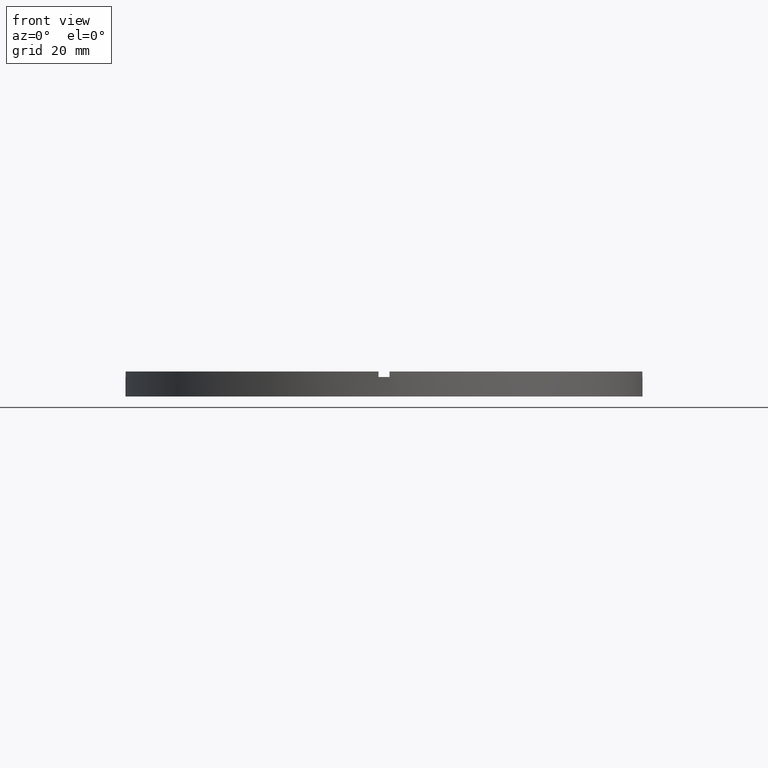
[diagram: clean part render]
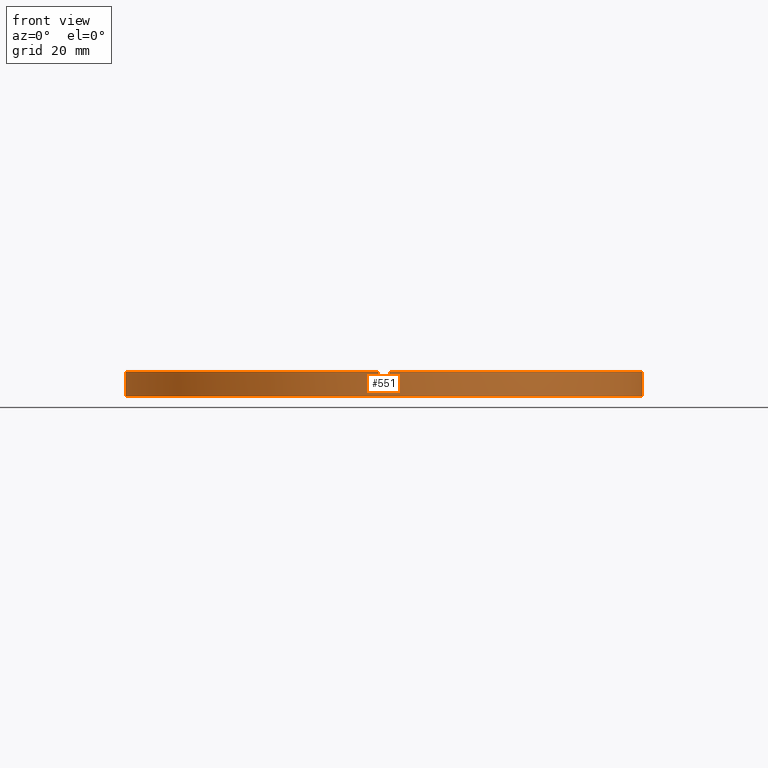
[diagram: same view with one face highlighted and labeled with its STEP entity id]
A machine part, front view. The second image highlights one B-rep face of the part: STEP entity #551.
In plain terms, the highlighted cylindrical surface (partial cylindrical patch) has radius 46.5 mm, axis along (-0, -0, -1).
Its self-contained STEP definition (entity closure, byte-faithful):
#26 = CARTESIAN_POINT ( 'NONE',  ( -46.50000000000000000, 0.000000000000000000, 0.000000000000000000 ) ) ;
#36 = DIRECTION ( 'NONE',  ( -0.000000000000000000, -0.000000000000000000, -1.000000000000000000 ) ) ;
#40 = CARTESIAN_POINT ( 'NONE',  ( 46.48924606831132422, -1.000000000000155875, 3.499999999999999556 ) ) ;
#42 = CARTESIAN_POINT ( 'NONE',  ( -46.48924606831132422, -1.000000000000030420, 4.500000000000000000 ) ) ;
#44 = CARTESIAN_POINT ( 'NONE',  ( -46.48924606831132422, -1.000000000000030420, 3.499999999999999556 ) ) ;
#64 = CARTESIAN_POINT ( 'NONE',  ( 0.000000000000000000, 0.000000000000000000, 3.499999999999999556 ) ) ;
#65 = CIRCLE ( 'NONE', #597, 46.50000000000000000 ) ;
#69 = CIRCLE ( 'NONE', #83, 46.50000000000000000 ) ;
#72 = CIRCLE ( 'NONE', #772, 46.50000000000000000 ) ;
#77 = CARTESIAN_POINT ( 'NONE',  ( 0.000000000000000000, 0.000000000000000000, 0.000000000000000000 ) ) ;
#83 = AXIS2_PLACEMENT_3D ( 'NONE', #77, #144, #225 ) ;
#89 = CARTESIAN_POINT ( 'NONE',  ( -1.000000000000157652, -46.48924606831132422, 4.500000000000000000 ) ) ;
#94 = VECTOR ( 'NONE', #530, 1000.000000000000000 ) ;
#96 = VERTEX_POINT ( 'NONE', #40 ) ;
#101 = ORIENTED_EDGE ( 'NONE', *, *, #562, .T. ) ;
#111 = ORIENTED_EDGE ( 'NONE', *, *, #407, .F. ) ;
#112 = EDGE_CURVE ( 'NONE', #96, #644, #249, .T. ) ;
#113 = LINE ( 'NONE', #155, #213 ) ;
#118 = FACE_OUTER_BOUND ( 'NONE', #370, .T. ) ;
#132 = VERTEX_POINT ( 'NONE', #44 ) ;
#133 = DIRECTION ( 'NONE',  ( -0.000000000000000000, -0.000000000000000000, -1.000000000000000000 ) ) ;
#136 = ORIENTED_EDGE ( 'NONE', *, *, #660, .T. ) ;
#144 = DIRECTION ( 'NONE',  ( 0.000000000000000000, 0.000000000000000000, 1.000000000000000000 ) ) ;
#147 = AXIS2_PLACEMENT_3D ( 'NONE', #575, #775, #232 ) ;
#154 = DIRECTION ( 'NONE',  ( 0.000000000000000000, 0.000000000000000000, 1.000000000000000000 ) ) ;
#155 = CARTESIAN_POINT ( 'NONE',  ( 0.9999999999998423483, -46.48924606831132422, 4.500000000000000000 ) ) ;
#170 = VECTOR ( 'NONE', #36, 1000.000000000000000 ) ;
#174 = AXIS2_PLACEMENT_3D ( 'NONE', #451, #289, #469 ) ;
#179 = LINE ( 'NONE', #275, #170 ) ;
#185 = VECTOR ( 'NONE', #678, 1000.000000000000000 ) ;
#189 = ORIENTED_EDGE ( 'NONE', *, *, #112, .F. ) ;
#194 = CIRCLE ( 'NONE', #174, 46.50000000000000000 ) ;
#202 = LINE ( 'NONE', #204, #185 ) ;
#204 = CARTESIAN_POINT ( 'NONE',  ( 46.48924606831132422, -1.000000000000155875, 4.500000000000000000 ) ) ;
#207 = CARTESIAN_POINT ( 'NONE',  ( 46.50000000000000000, 5.694607616035192278E-15, 4.500000000000000000 ) ) ;
#213 = VECTOR ( 'NONE', #133, 1000.000000000000000 ) ;
#219 = ORIENTED_EDGE ( 'NONE', *, *, #283, .F. ) ;
#225 = DIRECTION ( 'NONE',  ( 1.000000000000000000, 0.000000000000000000, 0.000000000000000000 ) ) ;
#232 = DIRECTION ( 'NONE',  ( -1.000000000000000000, 0.000000000000000000, 0.000000000000000000 ) ) ;
#249 = CIRCLE ( 'NONE', #637, 46.50000000000000000 ) ;
#256 = LINE ( 'NONE', #702, #520 ) ;
#258 = EDGE_CURVE ( 'NONE', #727, #132, #256, .T. ) ;
#260 = VECTOR ( 'NONE', #154, 1000.000000000000000 ) ;
#271 = EDGE_CURVE ( 'NONE', #390, #627, #783, .T. ) ;
#275 = CARTESIAN_POINT ( 'NONE',  ( -46.50000000000000000, 0.000000000000000000, 4.500000000000000000 ) ) ;
#279 = CARTESIAN_POINT ( 'NONE',  ( 0.9999999999998423483, -46.48924606831132422, 4.500000000000000000 ) ) ;
#283 = EDGE_CURVE ( 'NONE', #390, #483, #587, .T. ) ;
#284 = CARTESIAN_POINT ( 'NONE',  ( 46.50000000000000000, 5.694607616035192278E-15, 0.000000000000000000 ) ) ;
#289 = DIRECTION ( 'NONE',  ( 0.000000000000000000, 0.000000000000000000, 1.000000000000000000 ) ) ;
#299 = DIRECTION ( 'NONE',  ( -0.000000000000000000, 0.000000000000000000, 1.000000000000000000 ) ) ;
#350 = CARTESIAN_POINT ( 'NONE',  ( -1.000000000000157652, -46.48924606831132422, 3.499999999999999556 ) ) ;
#357 = LINE ( 'NONE', #207, #94 ) ;
#361 = DIRECTION ( 'NONE',  ( 1.000000000000000000, 0.000000000000000000, 0.000000000000000000 ) ) ;
#366 = ORIENTED_EDGE ( 'NONE', *, *, #258, .T. ) ;
#369 = DIRECTION ( 'NONE',  ( 1.000000000000000000, 0.000000000000000000, 0.000000000000000000 ) ) ;
#370 = EDGE_LOOP ( 'NONE', ( #698, #189, #136, #445, #101, #219, #485, #397, #366, #111, #447, #730 ) ) ;
#386 = CARTESIAN_POINT ( 'NONE',  ( 0.9999999999998423483, -46.48924606831132422, 3.499999999999999556 ) ) ;
#390 = VERTEX_POINT ( 'NONE', #350 ) ;
#397 = ORIENTED_EDGE ( 'NONE', *, *, #731, .F. ) ;
#399 = EDGE_CURVE ( 'NONE', #715, #411, #72, .T. ) ;
#407 = EDGE_CURVE ( 'NONE', #719, #132, #65, .T. ) ;
#411 = VERTEX_POINT ( 'NONE', #535 ) ;
#444 = AXIS2_PLACEMENT_3D ( 'NONE', #64, #299, #361 ) ;
#445 = ORIENTED_EDGE ( 'NONE', *, *, #399, .F. ) ;
#447 = ORIENTED_EDGE ( 'NONE', *, *, #647, .T. ) ;
#451 = CARTESIAN_POINT ( 'NONE',  ( 0.000000000000000000, 0.000000000000000000, 4.500000000000000000 ) ) ;
#454 = CARTESIAN_POINT ( 'NONE',  ( 0.000000000000000000, 0.000000000000000000, 3.499999999999999556 ) ) ;
#455 = EDGE_CURVE ( 'NONE', #490, #465, #69, .T. ) ;
#465 = VERTEX_POINT ( 'NONE', #284 ) ;
#469 = DIRECTION ( 'NONE',  ( 1.000000000000000000, 0.000000000000000000, 0.000000000000000000 ) ) ;
#483 = VERTEX_POINT ( 'NONE', #386 ) ;
#485 = ORIENTED_EDGE ( 'NONE', *, *, #271, .T. ) ;
#490 = VERTEX_POINT ( 'NONE', #26 ) ;
#494 = EDGE_CURVE ( 'NONE', #644, #465, #357, .T. ) ;
#520 = VECTOR ( 'NONE', #779, 1000.000000000000000 ) ;
#530 = DIRECTION ( 'NONE',  ( -0.000000000000000000, -0.000000000000000000, -1.000000000000000000 ) ) ;
#535 = CARTESIAN_POINT ( 'NONE',  ( 46.48924606831132422, -1.000000000000155875, 4.500000000000000000 ) ) ;
#551 = ADVANCED_FACE ( 'NONE', ( #118 ), #631, .T. ) ;
#561 = CARTESIAN_POINT ( 'NONE',  ( 0.000000000000000000, 0.000000000000000000, 4.500000000000000000 ) ) ;
#562 = EDGE_CURVE ( 'NONE', #715, #483, #113, .T. ) ;
#572 = CARTESIAN_POINT ( 'NONE',  ( 46.50000000000000000, 5.694607616035192278E-15, 3.499999999999999556 ) ) ;
#573 = CARTESIAN_POINT ( 'NONE',  ( -46.50000000000000000, 0.000000000000000000, 3.499999999999999556 ) ) ;
#574 = CARTESIAN_POINT ( 'NONE',  ( 0.000000000000000000, 0.000000000000000000, 3.499999999999999556 ) ) ;
#575 = CARTESIAN_POINT ( 'NONE',  ( 0.000000000000000000, 0.000000000000000000, 4.500000000000000000 ) ) ;
#587 = CIRCLE ( 'NONE', #444, 46.50000000000000000 ) ;
#588 = DIRECTION ( 'NONE',  ( 1.000000000000000000, 0.000000000000000000, 0.000000000000000000 ) ) ;
#592 = DIRECTION ( 'NONE',  ( 0.000000000000000000, 0.000000000000000000, 1.000000000000000000 ) ) ;
#597 = AXIS2_PLACEMENT_3D ( 'NONE', #574, #693, #588 ) ;
#612 = DIRECTION ( 'NONE',  ( 0.000000000000000000, 0.000000000000000000, 1.000000000000000000 ) ) ;
#627 = VERTEX_POINT ( 'NONE', #710 ) ;
#631 = CYLINDRICAL_SURFACE ( 'NONE', #147, 46.50000000000000000 ) ;
#637 = AXIS2_PLACEMENT_3D ( 'NONE', #454, #592, #369 ) ;
#644 = VERTEX_POINT ( 'NONE', #572 ) ;
#647 = EDGE_CURVE ( 'NONE', #719, #490, #179, .T. ) ;
#660 = EDGE_CURVE ( 'NONE', #96, #411, #202, .T. ) ;
#678 = DIRECTION ( 'NONE',  ( 0.000000000000000000, 0.000000000000000000, 1.000000000000000000 ) ) ;
#693 = DIRECTION ( 'NONE',  ( 0.000000000000000000, 0.000000000000000000, 1.000000000000000000 ) ) ;
#698 = ORIENTED_EDGE ( 'NONE', *, *, #494, .F. ) ;
#702 = CARTESIAN_POINT ( 'NONE',  ( -46.48924606831132422, -1.000000000000030420, 4.500000000000000000 ) ) ;
#710 = CARTESIAN_POINT ( 'NONE',  ( -1.000000000000157652, -46.48924606831132422, 4.500000000000000000 ) ) ;
#715 = VERTEX_POINT ( 'NONE', #279 ) ;
#719 = VERTEX_POINT ( 'NONE', #573 ) ;
#722 = DIRECTION ( 'NONE',  ( 1.000000000000000000, 0.000000000000000000, 0.000000000000000000 ) ) ;
#727 = VERTEX_POINT ( 'NONE', #42 ) ;
#730 = ORIENTED_EDGE ( 'NONE', *, *, #455, .T. ) ;
#731 = EDGE_CURVE ( 'NONE', #727, #627, #194, .T. ) ;
#772 = AXIS2_PLACEMENT_3D ( 'NONE', #561, #612, #722 ) ;
#775 = DIRECTION ( 'NONE',  ( -0.000000000000000000, -0.000000000000000000, -1.000000000000000000 ) ) ;
#779 = DIRECTION ( 'NONE',  ( -0.000000000000000000, -0.000000000000000000, -1.000000000000000000 ) ) ;
#783 = LINE ( 'NONE', #89, #260 ) ;